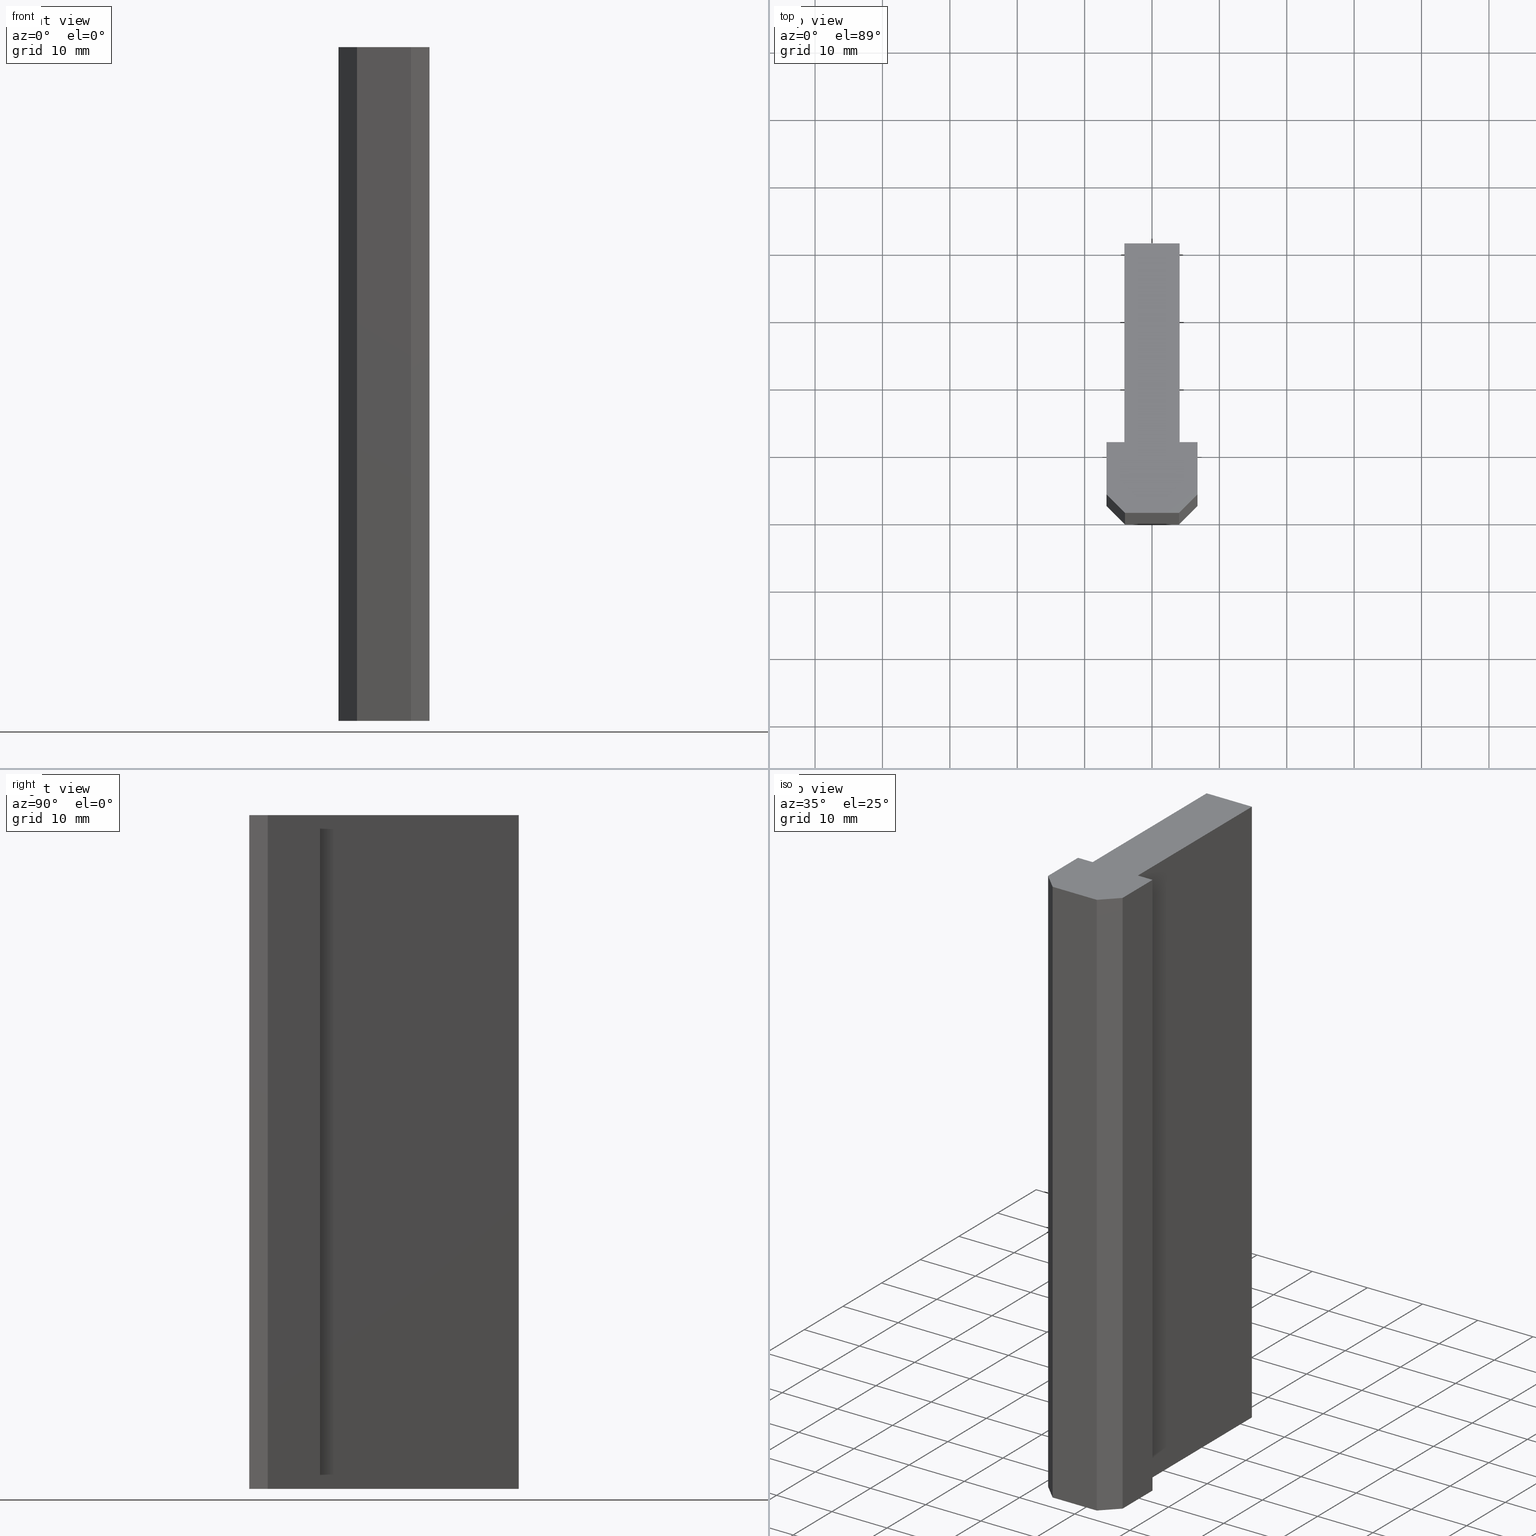
[diagram: canonical four-view strip — front | top / right | iso, engineering-drawing reading convention]
A machine part, canonical four-view strip (front | top / right | iso — engineering-drawing reading convention). The complete STEP part file that produces these views, byte-faithful:
ISO-10303-21;
HEADER;
/****************************************************************
 * Generated by software with PDE/Lib inside                    *
 * PDElib Version v4.4, created Mon 02/23/2004                  *
 * International Technegroup Inc. (www.iti-oh.com)              *
 ****************************************************************/
FILE_DESCRIPTION(('STEP AP203'),'2;1');
FILE_NAME('22.025.00.stp','2011-03-21T16:05:31',(''),(''),'2009.3.110','THINKDESIGN','');
FILE_SCHEMA(('CONFIG_CONTROL_DESIGN'));
ENDSEC;
DATA;
#2=CARTESIAN_POINT('',(-6.749999999972943,10.499999999957708,0.0));
#3=DIRECTION('',(-1.0,0.0,0.0));
#4=DIRECTION('',(0.0,-1.0,0.0));
#5=AXIS2_PLACEMENT_3D('',#2,#3,#4);
#6=PLANE('',#5);
#7=CARTESIAN_POINT('',(-6.749999999972943,10.499999999957708,0.0));
#8=VERTEX_POINT('',#7);
#9=CARTESIAN_POINT('',(-6.749999999973170,2.749999999989086,0.0));
#10=VERTEX_POINT('',#9);
#11=CARTESIAN_POINT('',(-6.749999999972943,10.499999999957630,0.0));
#12=DIRECTION('',(0.0,-1.0,0.0));
#13=VECTOR('',#12,7.749999999968999);
#14=LINE('',#11,#13);
#15=EDGE_CURVE('',#8,#10,#14,.T.);
#16=ORIENTED_EDGE('',*,*,#15,.T.);
#17=CARTESIAN_POINT('',(-6.749999999973170,2.749999999989086,100.0));
#18=VERTEX_POINT('',#17);
#19=CARTESIAN_POINT('',(-6.749999999973170,2.749999999989086,0.0));
#20=DIRECTION('',(0.0,0.0,1.0));
#21=VECTOR('',#20,100.0);
#22=LINE('',#19,#21);
#23=EDGE_CURVE('',#10,#18,#22,.T.);
#24=ORIENTED_EDGE('',*,*,#23,.T.);
#25=CARTESIAN_POINT('',(-6.749999999972943,10.499999999957708,100.0));
#26=VERTEX_POINT('',#25);
#27=CARTESIAN_POINT('',(-6.749999999972943,10.499999999957630,100.0));
#28=DIRECTION('',(0.0,-1.0,0.0));
#29=VECTOR('',#28,7.749999999968999);
#30=LINE('',#27,#29);
#31=EDGE_CURVE('',#26,#18,#30,.T.);
#32=ORIENTED_EDGE('',*,*,#31,.F.);
#33=CARTESIAN_POINT('',(-6.749999999972943,10.499999999957708,0.0));
#34=DIRECTION('',(0.0,0.0,1.0));
#35=VECTOR('',#34,100.0);
#36=LINE('',#33,#35);
#37=EDGE_CURVE('',#8,#26,#36,.T.);
#38=ORIENTED_EDGE('',*,*,#37,.F.);
#39=EDGE_LOOP('',(#16,#24,#32,#38));
#40=FACE_OUTER_BOUND('',#39,.T.);
#41=ADVANCED_FACE('',(#40),#6,.T.);
#42=CARTESIAN_POINT('',(-6.749999999973170,2.749999999989086,0.0));
#43=DIRECTION('',(-0.707106781186548,-0.707106781186548,0.0));
#44=DIRECTION('',(0.707106781186548,-0.707106781186548,0.0));
#45=AXIS2_PLACEMENT_3D('',#42,#43,#44);
#46=PLANE('',#45);
#47=CARTESIAN_POINT('',(-3.999999999983857,0.0,0.0));
#48=VERTEX_POINT('',#47);
#49=CARTESIAN_POINT('',(-6.749999999973081,2.749999999988997,0.0));
#50=DIRECTION('',(0.707106781186548,-0.707106781186547,0.0));
#51=VECTOR('',#50,3.889087296510451);
#52=LINE('',#49,#51);
#53=EDGE_CURVE('',#10,#48,#52,.T.);
#54=ORIENTED_EDGE('',*,*,#53,.T.);
#55=CARTESIAN_POINT('',(-3.999999999983857,0.0,100.0));
#56=VERTEX_POINT('',#55);
#57=CARTESIAN_POINT('',(-3.999999999983857,0.0,0.0));
#58=DIRECTION('',(0.0,0.0,1.0));
#59=VECTOR('',#58,100.0);
#60=LINE('',#57,#59);
#61=EDGE_CURVE('',#48,#56,#60,.T.);
#62=ORIENTED_EDGE('',*,*,#61,.T.);
#63=CARTESIAN_POINT('',(-6.749999999973081,2.749999999988997,100.0));
#64=DIRECTION('',(0.707106781186548,-0.707106781186547,0.0));
#65=VECTOR('',#64,3.889087296510451);
#66=LINE('',#63,#65);
#67=EDGE_CURVE('',#18,#56,#66,.T.);
#68=ORIENTED_EDGE('',*,*,#67,.F.);
#69=ORIENTED_EDGE('',*,*,#23,.F.);
#70=EDGE_LOOP('',(#54,#62,#68,#69));
#71=FACE_OUTER_BOUND('',#70,.T.);
#72=ADVANCED_FACE('',(#71),#46,.T.);
#73=CARTESIAN_POINT('',(-3.999999999983857,0.0,0.0));
#74=DIRECTION('',(0.0,-1.0,0.0));
#75=DIRECTION('',(1.0,0.0,0.0));
#76=AXIS2_PLACEMENT_3D('',#73,#74,#75);
#77=PLANE('',#76);
#78=CARTESIAN_POINT('',(3.999999999983857,-4.547474E-013,0.0));
#79=VERTEX_POINT('',#78);
#80=CARTESIAN_POINT('',(-3.999999999983911,0.0,0.0));
#81=DIRECTION('',(1.0,0.0,0.0));
#82=VECTOR('',#81,7.999999999967995);
#83=LINE('',#80,#82);
#84=EDGE_CURVE('',#48,#79,#83,.T.);
#85=ORIENTED_EDGE('',*,*,#84,.T.);
#86=CARTESIAN_POINT('',(3.999999999983857,-4.547474E-013,100.0));
#87=VERTEX_POINT('',#86);
#88=CARTESIAN_POINT('',(3.999999999983857,-4.547474E-013,0.0));
#89=DIRECTION('',(0.0,0.0,1.0));
#90=VECTOR('',#89,100.0);
#91=LINE('',#88,#90);
#92=EDGE_CURVE('',#79,#87,#91,.T.);
#93=ORIENTED_EDGE('',*,*,#92,.T.);
#94=CARTESIAN_POINT('',(-3.999999999983911,0.0,100.0));
#95=DIRECTION('',(1.0,0.0,0.0));
#96=VECTOR('',#95,7.999999999967995);
#97=LINE('',#94,#96);
#98=EDGE_CURVE('',#56,#87,#97,.T.);
#99=ORIENTED_EDGE('',*,*,#98,.F.);
#100=ORIENTED_EDGE('',*,*,#61,.F.);
#101=EDGE_LOOP('',(#85,#93,#99,#100));
#102=FACE_OUTER_BOUND('',#101,.T.);
#103=ADVANCED_FACE('',(#102),#77,.T.);
#104=CARTESIAN_POINT('',(3.999999999983857,-4.547474E-013,0.0));
#105=DIRECTION('',(0.707106781186548,-0.707106781186548,0.0));
#106=DIRECTION('',(0.707106781186548,0.707106781186548,0.0));
#107=AXIS2_PLACEMENT_3D('',#104,#105,#106);
#108=PLANE('',#107);
#109=CARTESIAN_POINT('',(6.749999999972943,2.749999999988631,0.0));
#110=VERTEX_POINT('',#109);
#111=CARTESIAN_POINT('',(3.999999999983946,-3.654854E-013,0.0));
#112=DIRECTION('',(0.707106781186548,0.707106781186548,0.0));
#113=VECTOR('',#112,3.889087296510450);
#114=LINE('',#111,#113);
#115=EDGE_CURVE('',#79,#110,#114,.T.);
#116=ORIENTED_EDGE('',*,*,#115,.T.);
#117=CARTESIAN_POINT('',(6.749999999972943,2.749999999988631,100.0));
#118=VERTEX_POINT('',#117);
#119=CARTESIAN_POINT('',(6.749999999972943,2.749999999988631,0.0));
#120=DIRECTION('',(0.0,0.0,1.0));
#121=VECTOR('',#120,100.0);
#122=LINE('',#119,#121);
#123=EDGE_CURVE('',#110,#118,#122,.T.);
#124=ORIENTED_EDGE('',*,*,#123,.T.);
#125=CARTESIAN_POINT('',(3.999999999983946,-3.654854E-013,100.0));
#126=DIRECTION('',(0.707106781186548,0.707106781186548,0.0));
#127=VECTOR('',#126,3.889087296510450);
#128=LINE('',#125,#127);
#129=EDGE_CURVE('',#87,#118,#128,.T.);
#130=ORIENTED_EDGE('',*,*,#129,.F.);
#131=ORIENTED_EDGE('',*,*,#92,.F.);
#132=EDGE_LOOP('',(#116,#124,#130,#131));
#133=FACE_OUTER_BOUND('',#132,.T.);
#134=ADVANCED_FACE('',(#133),#108,.T.);
#135=CARTESIAN_POINT('',(6.749999999972943,2.749999999988631,0.0));
#136=DIRECTION('',(1.0,0.0,0.0));
#137=DIRECTION('',(0.0,1.0,0.0));
#138=AXIS2_PLACEMENT_3D('',#135,#136,#137);
#139=PLANE('',#138);
#140=CARTESIAN_POINT('',(6.749999999972943,10.499999999957708,0.0));
#141=VERTEX_POINT('',#140);
#142=CARTESIAN_POINT('',(6.749999999972943,2.749999999988710,0.0));
#143=DIRECTION('',(0.0,1.0,0.0));
#144=VECTOR('',#143,7.749999999968998);
#145=LINE('',#142,#144);
#146=EDGE_CURVE('',#110,#141,#145,.T.);
#147=ORIENTED_EDGE('',*,*,#146,.T.);
#148=CARTESIAN_POINT('',(6.749999999972943,10.499999999957708,100.0));
#149=VERTEX_POINT('',#148);
#150=CARTESIAN_POINT('',(6.749999999972943,10.499999999957708,0.0));
#151=DIRECTION('',(0.0,0.0,1.0));
#152=VECTOR('',#151,100.0);
#153=LINE('',#150,#152);
#154=EDGE_CURVE('',#141,#149,#153,.T.);
#155=ORIENTED_EDGE('',*,*,#154,.T.);
#156=CARTESIAN_POINT('',(6.749999999972943,2.749999999988710,100.0));
#157=DIRECTION('',(0.0,1.0,0.0));
#158=VECTOR('',#157,7.749999999968998);
#159=LINE('',#156,#158);
#160=EDGE_CURVE('',#118,#149,#159,.T.);
#161=ORIENTED_EDGE('',*,*,#160,.F.);
#162=ORIENTED_EDGE('',*,*,#123,.F.);
#163=EDGE_LOOP('',(#147,#155,#161,#162));
#164=FACE_OUTER_BOUND('',#163,.T.);
#165=ADVANCED_FACE('',(#164),#139,.T.);
#166=CARTESIAN_POINT('',(6.749999999972943,10.499999999957708,0.0));
#167=DIRECTION('',(0.0,1.0,0.0));
#168=DIRECTION('',(-1.0,0.0,0.0));
#169=AXIS2_PLACEMENT_3D('',#166,#167,#168);
#170=PLANE('',#169);
#171=CARTESIAN_POINT('',(4.099999999983538,10.499999999957708,0.0));
#172=VERTEX_POINT('',#171);
#173=CARTESIAN_POINT('',(6.749999999972937,10.499999999957708,0.0));
#174=DIRECTION('',(-1.0,0.0,0.0));
#175=VECTOR('',#174,2.649999999989399);
#176=LINE('',#173,#175);
#177=EDGE_CURVE('',#141,#172,#176,.T.);
#178=ORIENTED_EDGE('',*,*,#177,.T.);
#179=CARTESIAN_POINT('',(4.099999999983538,10.499999999957708,100.0));
#180=VERTEX_POINT('',#179);
#181=CARTESIAN_POINT('',(4.099999999983538,10.499999999957708,0.0));
#182=DIRECTION('',(0.0,0.0,1.0));
#183=VECTOR('',#182,100.0);
#184=LINE('',#181,#183);
#185=EDGE_CURVE('',#172,#180,#184,.T.);
#186=ORIENTED_EDGE('',*,*,#185,.T.);
#187=CARTESIAN_POINT('',(6.749999999972937,10.499999999957708,100.0));
#188=DIRECTION('',(-1.0,0.0,0.0));
#189=VECTOR('',#188,2.649999999989399);
#190=LINE('',#187,#189);
#191=EDGE_CURVE('',#149,#180,#190,.T.);
#192=ORIENTED_EDGE('',*,*,#191,.F.);
#193=ORIENTED_EDGE('',*,*,#154,.F.);
#194=EDGE_LOOP('',(#178,#186,#192,#193));
#195=FACE_OUTER_BOUND('',#194,.T.);
#196=ADVANCED_FACE('',(#195),#170,.T.);
#197=CARTESIAN_POINT('',(4.099999999983538,10.499999999957708,0.0));
#198=DIRECTION('',(1.0,0.0,0.0));
#199=DIRECTION('',(0.0,1.0,0.0));
#200=AXIS2_PLACEMENT_3D('',#197,#198,#199);
#201=PLANE('',#200);
#202=CARTESIAN_POINT('',(4.099999999983766,39.999999999839929,0.0));
#203=VERTEX_POINT('',#202);
#204=CARTESIAN_POINT('',(4.099999999983538,10.499999999957915,0.0));
#205=DIRECTION('',(0.0,1.0,0.0));
#206=VECTOR('',#205,29.499999999882014);
#207=LINE('',#204,#206);
#208=EDGE_CURVE('',#172,#203,#207,.T.);
#209=ORIENTED_EDGE('',*,*,#208,.T.);
#210=CARTESIAN_POINT('',(4.099999999983766,39.999999999839929,100.0));
#211=VERTEX_POINT('',#210);
#212=CARTESIAN_POINT('',(4.099999999983766,39.999999999839929,0.0));
#213=DIRECTION('',(0.0,0.0,1.0));
#214=VECTOR('',#213,100.0);
#215=LINE('',#212,#214);
#216=EDGE_CURVE('',#203,#211,#215,.T.);
#217=ORIENTED_EDGE('',*,*,#216,.T.);
#218=CARTESIAN_POINT('',(4.099999999983538,10.499999999957915,100.0));
#219=DIRECTION('',(0.0,1.0,0.0));
#220=VECTOR('',#219,29.499999999882014);
#221=LINE('',#218,#220);
#222=EDGE_CURVE('',#180,#211,#221,.T.);
#223=ORIENTED_EDGE('',*,*,#222,.F.);
#224=ORIENTED_EDGE('',*,*,#185,.F.);
#225=EDGE_LOOP('',(#209,#217,#223,#224));
#226=FACE_OUTER_BOUND('',#225,.T.);
#227=ADVANCED_FACE('',(#226),#201,.T.);
#228=CARTESIAN_POINT('',(4.099999999983766,39.999999999839929,0.0));
#229=DIRECTION('',(0.0,1.0,0.0));
#230=DIRECTION('',(-1.0,0.0,0.0));
#231=AXIS2_PLACEMENT_3D('',#228,#229,#230);
#232=PLANE('',#231);
#233=CARTESIAN_POINT('',(-4.099999999983538,39.999999999839929,0.0));
#234=VERTEX_POINT('',#233);
#235=CARTESIAN_POINT('',(4.099999999983671,39.999999999839929,0.0));
#236=DIRECTION('',(-1.0,0.0,0.0));
#237=VECTOR('',#236,8.199999999967210);
#238=LINE('',#235,#237);
#239=EDGE_CURVE('',#203,#234,#238,.T.);
#240=ORIENTED_EDGE('',*,*,#239,.T.);
#241=CARTESIAN_POINT('',(-4.099999999983538,39.999999999839929,100.0));
#242=VERTEX_POINT('',#241);
#243=CARTESIAN_POINT('',(-4.099999999983538,39.999999999839929,0.0));
#244=DIRECTION('',(0.0,0.0,1.0));
#245=VECTOR('',#244,100.0);
#246=LINE('',#243,#245);
#247=EDGE_CURVE('',#234,#242,#246,.T.);
#248=ORIENTED_EDGE('',*,*,#247,.T.);
#249=CARTESIAN_POINT('',(4.099999999983671,39.999999999839929,100.0));
#250=DIRECTION('',(-1.0,0.0,0.0));
#251=VECTOR('',#250,8.199999999967210);
#252=LINE('',#249,#251);
#253=EDGE_CURVE('',#211,#242,#252,.T.);
#254=ORIENTED_EDGE('',*,*,#253,.F.);
#255=ORIENTED_EDGE('',*,*,#216,.F.);
#256=EDGE_LOOP('',(#240,#248,#254,#255));
#257=FACE_OUTER_BOUND('',#256,.T.);
#258=ADVANCED_FACE('',(#257),#232,.T.);
#259=CARTESIAN_POINT('',(-4.099999999983538,39.999999999839929,0.0));
#260=DIRECTION('',(-1.0,0.0,0.0));
#261=DIRECTION('',(0.0,-1.0,0.0));
#262=AXIS2_PLACEMENT_3D('',#259,#260,#261);
#263=PLANE('',#262);
#264=CARTESIAN_POINT('',(-4.099999999983538,10.499999999957708,0.0));
#265=VERTEX_POINT('',#264);
#266=CARTESIAN_POINT('',(-4.099999999983538,39.999999999839723,0.0));
#267=DIRECTION('',(0.0,-1.0,0.0));
#268=VECTOR('',#267,29.499999999882014);
#269=LINE('',#266,#268);
#270=EDGE_CURVE('',#234,#265,#269,.T.);
#271=ORIENTED_EDGE('',*,*,#270,.T.);
#272=CARTESIAN_POINT('',(-4.099999999983538,10.499999999957708,100.0));
#273=VERTEX_POINT('',#272);
#274=CARTESIAN_POINT('',(-4.099999999983538,10.499999999957708,0.0));
#275=DIRECTION('',(0.0,0.0,1.0));
#276=VECTOR('',#275,100.0);
#277=LINE('',#274,#276);
#278=EDGE_CURVE('',#265,#273,#277,.T.);
#279=ORIENTED_EDGE('',*,*,#278,.T.);
#280=CARTESIAN_POINT('',(-4.099999999983538,39.999999999839723,100.0));
#281=DIRECTION('',(0.0,-1.0,0.0));
#282=VECTOR('',#281,29.499999999882014);
#283=LINE('',#280,#282);
#284=EDGE_CURVE('',#242,#273,#283,.T.);
#285=ORIENTED_EDGE('',*,*,#284,.F.);
#286=ORIENTED_EDGE('',*,*,#247,.F.);
#287=EDGE_LOOP('',(#271,#279,#285,#286));
#288=FACE_OUTER_BOUND('',#287,.T.);
#289=ADVANCED_FACE('',(#288),#263,.T.);
#290=CARTESIAN_POINT('',(-4.099999999983538,10.499999999957708,0.0));
#291=DIRECTION('',(0.0,1.0,0.0));
#292=DIRECTION('',(-1.0,0.0,0.0));
#293=AXIS2_PLACEMENT_3D('',#290,#291,#292);
#294=PLANE('',#293);
#295=CARTESIAN_POINT('',(-4.099999999983544,10.499999999957708,0.0));
#296=DIRECTION('',(-1.0,0.0,0.0));
#297=VECTOR('',#296,2.649999999989399);
#298=LINE('',#295,#297);
#299=EDGE_CURVE('',#265,#8,#298,.T.);
#300=ORIENTED_EDGE('',*,*,#299,.T.);
#301=ORIENTED_EDGE('',*,*,#37,.T.);
#302=CARTESIAN_POINT('',(-4.099999999983544,10.499999999957708,100.0));
#303=DIRECTION('',(-1.0,0.0,0.0));
#304=VECTOR('',#303,2.649999999989399);
#305=LINE('',#302,#304);
#306=EDGE_CURVE('',#273,#26,#305,.T.);
#307=ORIENTED_EDGE('',*,*,#306,.F.);
#308=ORIENTED_EDGE('',*,*,#278,.F.);
#309=EDGE_LOOP('',(#300,#301,#307,#308));
#310=FACE_OUTER_BOUND('',#309,.T.);
#311=ADVANCED_FACE('',(#310),#294,.T.);
#312=CARTESIAN_POINT('',(-8.100004734822051,-4.000004734819868,0.0));
#313=DIRECTION('',(0.0,0.0,1.0));
#314=DIRECTION('',(1.0,0.0,0.0));
#315=AXIS2_PLACEMENT_3D('',#312,#313,#314);
#316=PLANE('',#315);
#317=ORIENTED_EDGE('',*,*,#299,.F.);
#318=ORIENTED_EDGE('',*,*,#270,.F.);
#319=ORIENTED_EDGE('',*,*,#239,.F.);
#320=ORIENTED_EDGE('',*,*,#208,.F.);
#321=ORIENTED_EDGE('',*,*,#177,.F.);
#322=ORIENTED_EDGE('',*,*,#146,.F.);
#323=ORIENTED_EDGE('',*,*,#115,.F.);
#324=ORIENTED_EDGE('',*,*,#84,.F.);
#325=ORIENTED_EDGE('',*,*,#53,.F.);
#326=ORIENTED_EDGE('',*,*,#15,.F.);
#327=EDGE_LOOP('',(#317,#318,#319,#320,#321,#322,#323,#324,#325,#326));
#328=FACE_OUTER_BOUND('',#327,.T.);
#329=ADVANCED_FACE('',(#328),#316,.F.);
#330=CARTESIAN_POINT('',(-8.100004734822051,-4.000004734819868,100.0));
#331=DIRECTION('',(0.0,0.0,1.0));
#332=DIRECTION('',(1.0,0.0,0.0));
#333=AXIS2_PLACEMENT_3D('',#330,#331,#332);
#334=PLANE('',#333);
#335=ORIENTED_EDGE('',*,*,#31,.T.);
#336=ORIENTED_EDGE('',*,*,#67,.T.);
#337=ORIENTED_EDGE('',*,*,#98,.T.);
#338=ORIENTED_EDGE('',*,*,#129,.T.);
#339=ORIENTED_EDGE('',*,*,#160,.T.);
#340=ORIENTED_EDGE('',*,*,#191,.T.);
#341=ORIENTED_EDGE('',*,*,#222,.T.);
#342=ORIENTED_EDGE('',*,*,#253,.T.);
#343=ORIENTED_EDGE('',*,*,#284,.T.);
#344=ORIENTED_EDGE('',*,*,#306,.T.);
#345=EDGE_LOOP('',(#335,#336,#337,#338,#339,#340,#341,#342,#343,#344));
#346=FACE_OUTER_BOUND('',#345,.T.);
#347=ADVANCED_FACE('',(#346),#334,.T.);
#348=CLOSED_SHELL('',(#41,#72,#103,#134,#165,#196,#227,#258,#289,#311,#329,#347));
#349=MANIFOLD_SOLID_BREP('',#348);
#355=(NAMED_UNIT(*)PLANE_ANGLE_UNIT()SI_UNIT($,.RADIAN.));
#356=DIMENSIONAL_EXPONENTS(0.0,0.0,0.0,0.0,0.0,0.0,0.0);
#357=PLANE_ANGLE_MEASURE_WITH_UNIT(PLANE_ANGLE_MEASURE(0.017453292500000),#355);
#361=(CONVERSION_BASED_UNIT('DEGREE',#357)NAMED_UNIT(#356)PLANE_ANGLE_UNIT());
#365=(NAMED_UNIT(*)SI_UNIT($,.STERADIAN.)SOLID_ANGLE_UNIT());
#369=(LENGTH_UNIT()NAMED_UNIT(*)SI_UNIT(.MILLI.,.METRE.));
#371=UNCERTAINTY_MEASURE_WITH_UNIT(LENGTH_MEASURE(0.001000000000000),#369,'DISTANCE_ACCURACY_VALUE','');
#373=(GEOMETRIC_REPRESENTATION_CONTEXT(3)GLOBAL_UNCERTAINTY_ASSIGNED_CONTEXT((#371))GLOBAL_UNIT_ASSIGNED_CONTEXT((#361,#365,#369))REPRESENTATION_CONTEXT('thinkdesign','2009.3.110'));
#374=ADVANCED_BREP_SHAPE_REPRESENTATION('',(#349),#373);
#375=APPLICATION_CONTEXT('configuration controlled 3D designs of mechanical parts and assemblies');
#376=APPLICATION_PROTOCOL_DEFINITION('International Standard','config_control_design',1995,#375);
#377=MECHANICAL_CONTEXT('None',#375,'mechanical');
#378=PRODUCT('None','None','None',(#377));
#379=PRODUCT_RELATED_PRODUCT_CATEGORY('detail',$,(#378));
#380=PRODUCT_CATEGORY('part',$);
#381=PRODUCT_CATEGORY_RELATIONSHIP('None','None',#380,#379);
#382=PERSON('PERSON1','None','None',$,$,$);
#383=ORGANIZATION('','None','None');
#384=PERSON_AND_ORGANIZATION(#382,#383);
#385=PERSON_AND_ORGANIZATION_ROLE('design_owner');
#386=CC_DESIGN_PERSON_AND_ORGANIZATION_ASSIGNMENT(#384,#385,(#378));
#387=PRODUCT_DEFINITION_FORMATION_WITH_SPECIFIED_SOURCE('None','None',#378,.NOT_KNOWN.);
#388=PERSON('PERSON2','None','None',$,$,$);
#389=ORGANIZATION('','None','None');
#390=PERSON_AND_ORGANIZATION(#388,#389);
#391=PERSON_AND_ORGANIZATION_ROLE('creator');
#392=CC_DESIGN_PERSON_AND_ORGANIZATION_ASSIGNMENT(#390,#391,(#387));
#393=PERSON('PERSON3','None','None',$,$,$);
#394=ORGANIZATION('','None','None');
#395=PERSON_AND_ORGANIZATION(#393,#394);
#396=PERSON_AND_ORGANIZATION_ROLE('part_supplier');
#397=CC_DESIGN_PERSON_AND_ORGANIZATION_ASSIGNMENT(#395,#396,(#387));
#398=APPROVAL_STATUS('approved');
#399=APPROVAL(#398,'None');
#400=PERSON('PERSON4','None','None',$,$,$);
#401=ORGANIZATION('','None','None');
#402=PERSON_AND_ORGANIZATION(#400,#401);
#403=APPROVAL_ROLE('None');
#404=APPROVAL_PERSON_ORGANIZATION(#402,#399,#403);
#405=CALENDAR_DATE(2011,21,3);
#406=COORDINATED_UNIVERSAL_TIME_OFFSET(0,0,.AHEAD.);
#407=LOCAL_TIME(16,5,31.0,#406);
#408=DATE_AND_TIME(#405,#407);
#409=APPROVAL_DATE_TIME(#408,#399);
#410=CC_DESIGN_APPROVAL(#399,(#387));
#411=SECURITY_CLASSIFICATION_LEVEL('unclassified');
#412=SECURITY_CLASSIFICATION('None','None',#411);
#413=CC_DESIGN_SECURITY_CLASSIFICATION(#412,(#387));
#414=APPROVAL_STATUS('approved');
#415=APPROVAL(#414,'None');
#416=PERSON('PERSON5','None','None',$,$,$);
#417=ORGANIZATION('','None','None');
#418=PERSON_AND_ORGANIZATION(#416,#417);
#419=APPROVAL_ROLE('None');
#420=APPROVAL_PERSON_ORGANIZATION(#418,#415,#419);
#421=CALENDAR_DATE(2011,21,3);
#422=COORDINATED_UNIVERSAL_TIME_OFFSET(0,0,.AHEAD.);
#423=LOCAL_TIME(16,5,31.0,#422);
#424=DATE_AND_TIME(#421,#423);
#425=APPROVAL_DATE_TIME(#424,#415);
#426=CC_DESIGN_APPROVAL(#415,(#412));
#427=PERSON('PERSON6','None','None',$,$,$);
#428=ORGANIZATION('','None','None');
#429=PERSON_AND_ORGANIZATION(#427,#428);
#430=PERSON_AND_ORGANIZATION_ROLE('classification_officer');
#431=CC_DESIGN_PERSON_AND_ORGANIZATION_ASSIGNMENT(#429,#430,(#412));
#432=DATE_TIME_ROLE('classification_date');
#433=CALENDAR_DATE(2011,21,3);
#434=COORDINATED_UNIVERSAL_TIME_OFFSET(0,0,.AHEAD.);
#435=LOCAL_TIME(16,5,31.0,#434);
#436=DATE_AND_TIME(#433,#435);
#437=CC_DESIGN_DATE_AND_TIME_ASSIGNMENT(#436,#432,(#412));
#438=DESIGN_CONTEXT('part definition',#375,'design');
#439=DOCUMENT_TYPE('cad_filename');
#440=DOCUMENT('None','None','None',#439);
#441=PRODUCT_DEFINITION_WITH_ASSOCIATED_DOCUMENTS('None','None',#387,#438,(#440));
#442=PERSON('PERSON7','None','None',$,$,$);
#443=ORGANIZATION('','None','None');
#444=PERSON_AND_ORGANIZATION(#442,#443);
#445=PERSON_AND_ORGANIZATION_ROLE('creator');
#446=CC_DESIGN_PERSON_AND_ORGANIZATION_ASSIGNMENT(#444,#445,(#441));
#447=DATE_TIME_ROLE('creation_date');
#448=CALENDAR_DATE(2011,21,3);
#449=COORDINATED_UNIVERSAL_TIME_OFFSET(0,0,.AHEAD.);
#450=LOCAL_TIME(16,5,31.0,#449);
#451=DATE_AND_TIME(#448,#450);
#452=CC_DESIGN_DATE_AND_TIME_ASSIGNMENT(#451,#447,(#441));
#453=APPROVAL_STATUS('approved');
#454=APPROVAL(#453,'None');
#455=PERSON('PERSON8','None','None',$,$,$);
#456=ORGANIZATION('','None','None');
#457=PERSON_AND_ORGANIZATION(#455,#456);
#458=APPROVAL_ROLE('None');
#459=APPROVAL_PERSON_ORGANIZATION(#457,#454,#458);
#460=CALENDAR_DATE(2011,21,3);
#461=COORDINATED_UNIVERSAL_TIME_OFFSET(0,0,.AHEAD.);
#462=LOCAL_TIME(16,5,31.0,#461);
#463=DATE_AND_TIME(#460,#462);
#464=APPROVAL_DATE_TIME(#463,#454);
#465=CC_DESIGN_APPROVAL(#454,(#441));
#466=PRODUCT_DEFINITION_SHAPE('None','None',#441);
#467=SHAPE_DEFINITION_REPRESENTATION(#466,#374);
#468=DIMENSIONAL_EXPONENTS(0.0,0.0,0.0,0.0,0.0,0.0,0.0);
#469=DIMENSIONAL_EXPONENTS(1.0,0.0,0.0,0.0,0.0,0.0,0.0);
ENDSEC;
END-ISO-10303-21;
